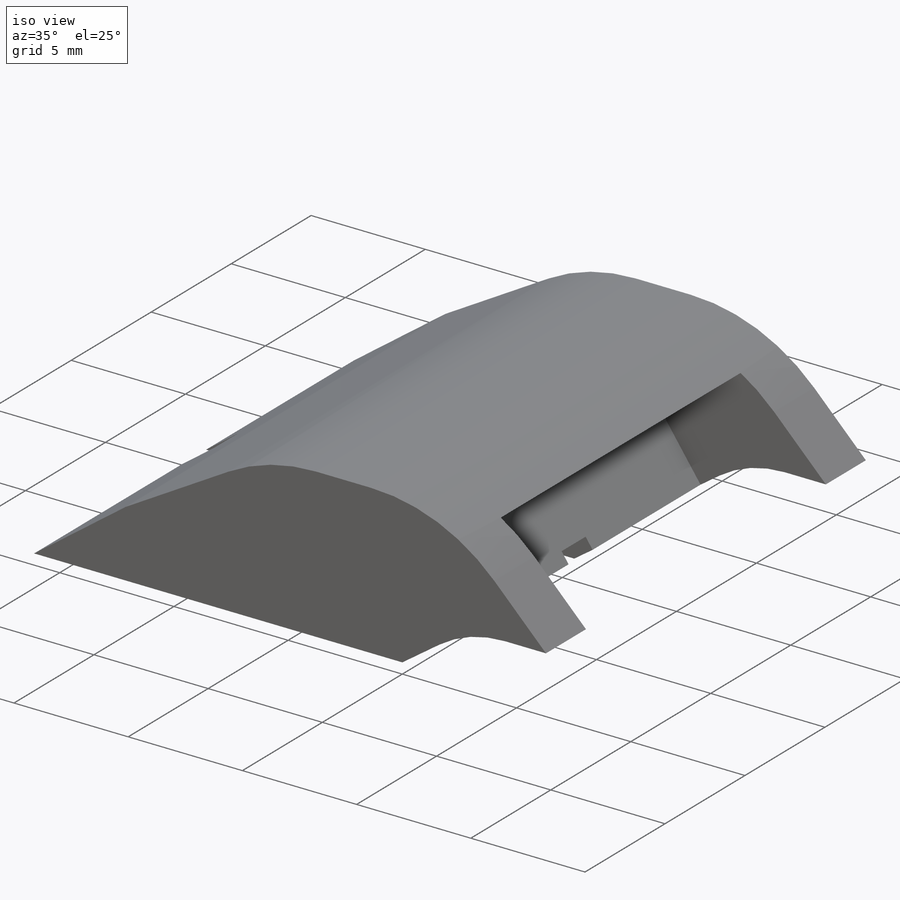
[diagram: iso view]
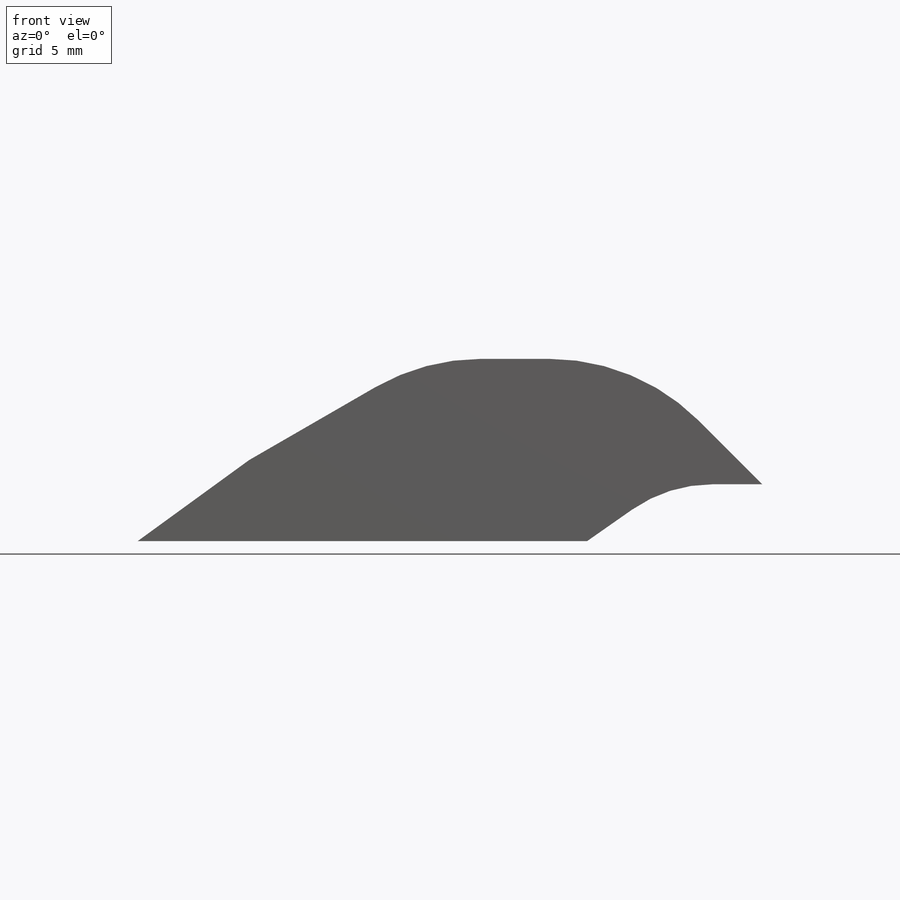
[diagram: front view]
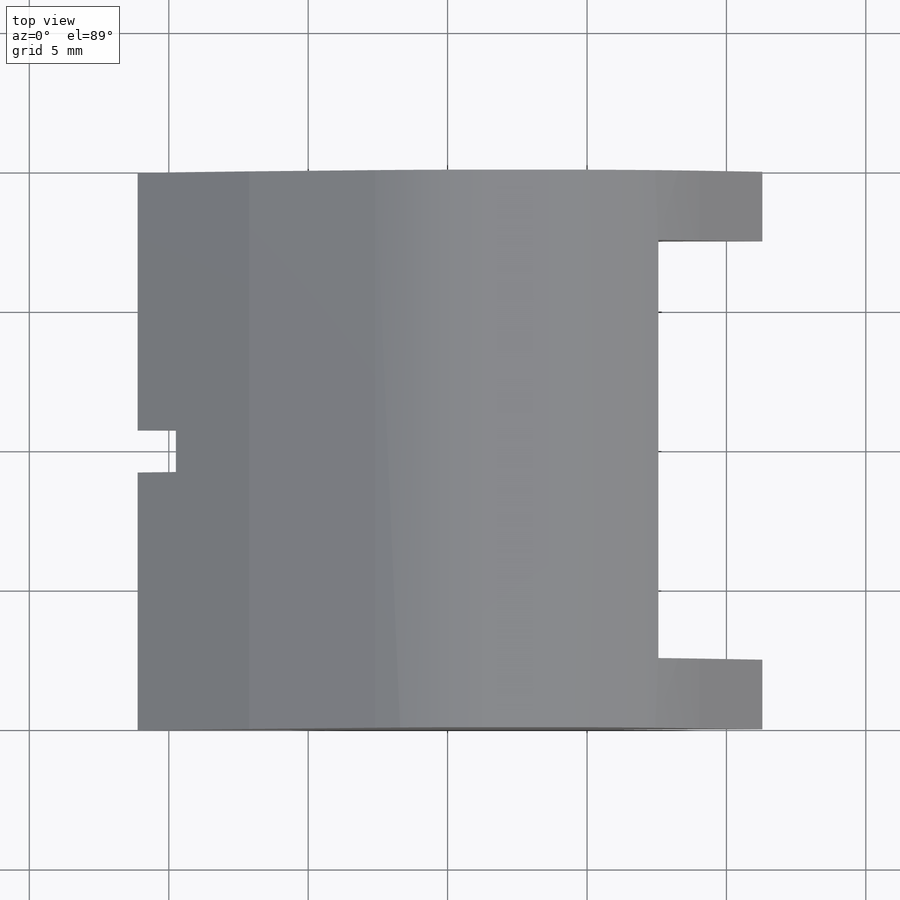
[diagram: top view]
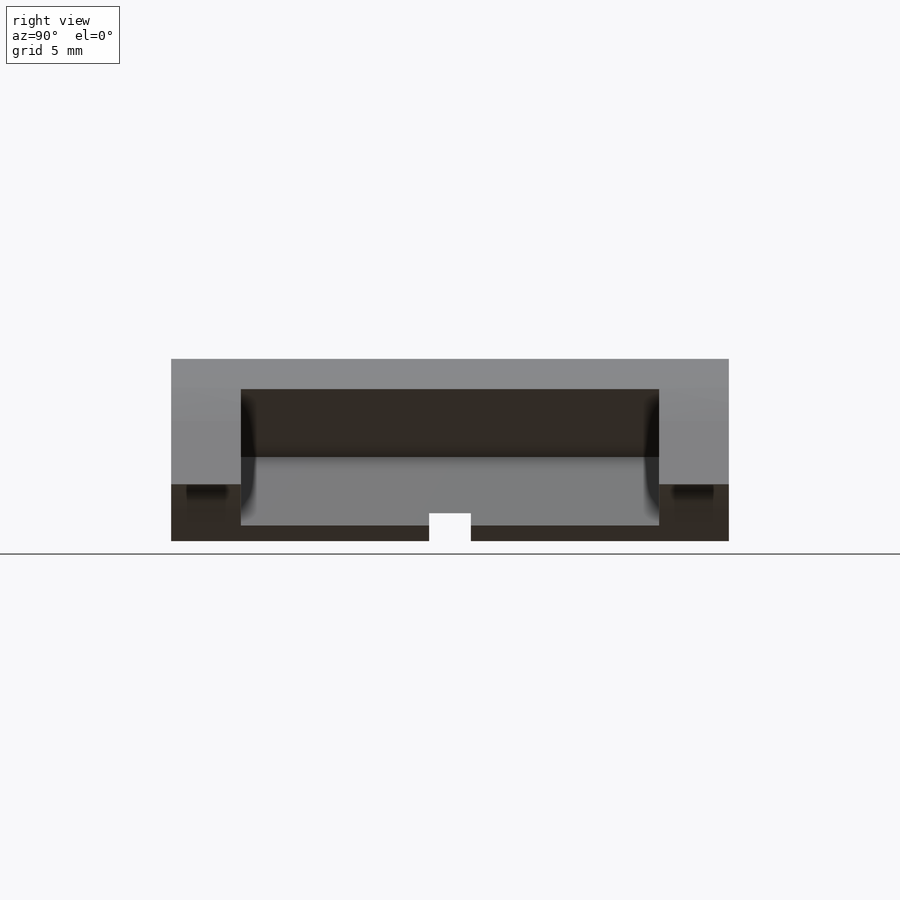
[diagram: right view]
SOLIDWORKS PART (.sldprt)
format: sldprt  version: not decoded by parser v0  size: 185,856 bytes
history: native  units: mm
features: sketch x3, cut_extrude x2, material x1, extrude x1, fillet x1 (+13 scaffold rows collapsed)
feature tree (21):
  scaffold x13  (default folders/planes/origin — collapsed)
  material  "Material <not specified>"
  sketch  "Sketch1"  dims[c1.D1=4.5mm c1.D2=~4.435572mm c2.D2=150.0deg c2.D3=~13.130775mm c3.D3=150.0deg c3.D4=~8.447445mm c4.D4=140.0deg c4.D5=7.62mm c5.D4=5.08mm c6.D4=135.0deg c6.D3=4.0mm]
  extrude  "Boss-Extrude1"  [1 undecoded]
  fillet  "Fillet1"  Radius=7.62mm
  sketch  "Sketch2"  dims[D1=15.0mm D2=1.0mm]
  cut_extrude  "Cut-Extrude3"  Depth=3mm
  sketch  "Sketch3"  dims[D1=1.5mm D2=1.0mm]
  cut_extrude  "Cut-Extrude4"  [1 undecoded]
decode coverage: 5 of 7 modeling features carry decoded parameters
note: ~ marks probable driven/reference dimensions
note: 2 parameter values undecoded
note: suppression state not decoded; provenance and decode notes live in map.json
